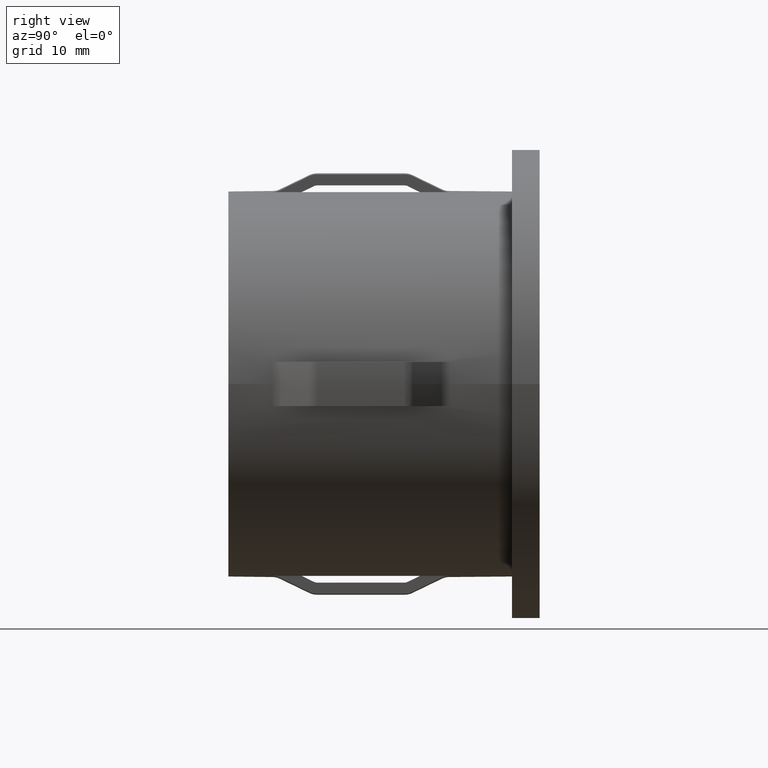
[diagram: clean part render]
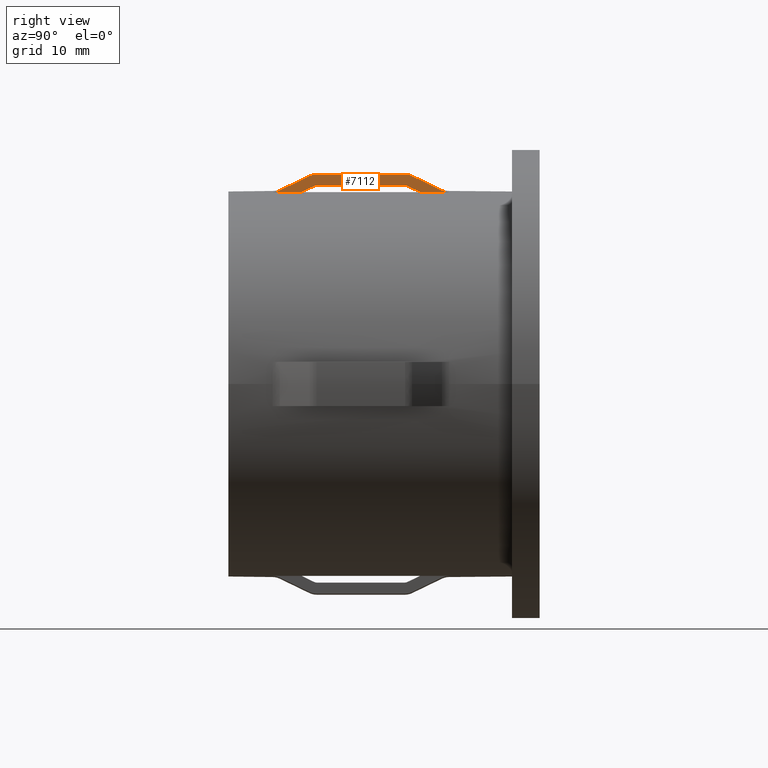
[diagram: same view with one face highlighted and labeled with its STEP entity id]
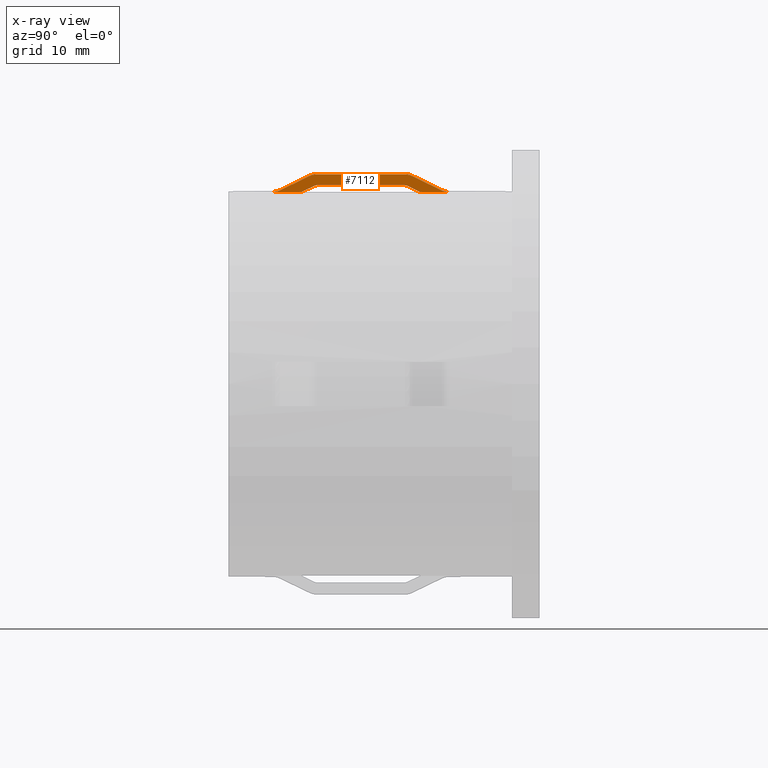
[diagram: x-ray of the same camera — body ghosted, the highlighted face saturated]
A machine part, right view. The second image highlights one B-rep face of the part: STEP entity #7112.
The next image is the same camera in x-ray: the body ghosted, the highlighted face saturated — about 0% of this face is hidden behind the body in this view.
In plain terms, the highlighted planar face has unit normal (-1, 0, 0).
Its self-contained STEP definition (entity closure, byte-faithful):
#287 = CARTESIAN_POINT ( 'NONE',  ( 2.000000000000004900, 7.556843958016167500, 18.93205106061641300 ) ) ;
#360 = VECTOR ( 'NONE', #13158, 1000.000000000000000 ) ;
#429 = CARTESIAN_POINT ( 'NONE',  ( 2.000000000000004400, 7.887045341509246300, 18.99499934193207900 ) ) ;
#511 = EDGE_CURVE ( 'NONE', #11537, #10698, #2198, .T. ) ;
#565 = CARTESIAN_POINT ( 'NONE',  ( 2.000000000000004000, 16.44480835107591300, 18.93155557880799100 ) ) ;
#716 = CARTESIAN_POINT ( 'NONE',  ( 2.000000000000004400, 16.21740934651483800, 17.93911509318548200 ) ) ;
#747 = ORIENTED_EDGE ( 'NONE', *, *, #10527, .F. ) ;
#803 = EDGE_CURVE ( 'NONE', #2848, #7339, #9553, .T. ) ;
#882 = B_SPLINE_CURVE_WITH_KNOTS ( 'NONE', 3,
 ( #8774, #6189, #7414, #5426, #4214, #1578 ),
 .UNSPECIFIED., .F., .F.,
 ( 4, 2, 4 ),
 ( 0.002984204066117889700, 0.003095767650386097100, 0.003207331234654304600 ),
 .UNSPECIFIED. ) ;
#1090 = CARTESIAN_POINT ( 'NONE',  ( 2.000000000000004400, 6.721277200092722600, 17.42338755500208000 ) ) ;
#1342 = PLANE ( 'NONE',  #9984 ) ;
#1360 = CARTESIAN_POINT ( 'NONE',  ( 2.000000000000004400, 16.78051298766993300, 18.78265418352582500 ) ) ;
#1435 = DIRECTION ( 'NONE',  ( -0.0000000000000000000, -1.000000000000000000, -0.0000000000000000000 ) ) ;
#1472 = CARTESIAN_POINT ( 'NONE',  ( 2.000000000000004400, 15.99999999999999300, 18.99499934193207600 ) ) ;
#1523 = ORIENTED_EDGE ( 'NONE', *, *, #14702, .F. ) ;
#1578 = CARTESIAN_POINT ( 'NONE',  ( 2.000000000000004400, 7.782590653485146800, 17.93911509318548500 ) ) ;
#1938 = CARTESIAN_POINT ( 'NONE',  ( 2.000000000000004400, 5.795604330137454200, 18.09114028407286800 ) ) ;
#1992 = CARTESIAN_POINT ( 'NONE',  ( 2.000000000000004400, 7.347771960455461700, 18.84494494648242100 ) ) ;
#2079 = CARTESIAN_POINT ( 'NONE',  ( 2.000000000000004400, 7.999999999999992900, 18.99499934193207600 ) ) ;
#2128 = EDGE_CURVE ( 'NONE', #3793, #4877, #4494, .T. ) ;
#2175 = CARTESIAN_POINT ( 'NONE',  ( 2.000000000000004400, 7.481000406290842600, 17.79258881661633400 ) ) ;
#2195 = EDGE_CURVE ( 'NONE', #6413, #4347, #11757, .T. ) ;
#2198 = B_SPLINE_CURVE_WITH_KNOTS ( 'NONE', 3,
 ( #15150, #10441, #11667, #4396, #7993, #12903, #4226 ),
 .UNSPECIFIED., .F., .F.,
 ( 4, 3, 4 ),
 ( 0.004378804806375631200, 0.005246043296429203800, 0.005645828840888095600 ),
 .UNSPECIFIED. ) ;
#2277 = CARTESIAN_POINT ( 'NONE',  ( 2.000000000000004400, 4.652228039544536600, 17.53553738695413600 ) ) ;
#2367 = CARTESIAN_POINT ( 'NONE',  ( 2.000000000000004400, 7.782590653485146800, 17.93911509318548500 ) ) ;
#2383 = CARTESIAN_POINT ( 'NONE',  ( 2.000000000000004400, 7.179418816228737100, 17.64604471980359800 ) ) ;
#2435 = CARTESIAN_POINT ( 'NONE',  ( 2.000000000000004400, 16.65222803954452500, 18.84494494648242100 ) ) ;
#2507 = DIRECTION ( 'NONE',  ( -0.0000000000000000000, -1.000000000000000000, -0.0000000000000000000 ) ) ;
#2606 = CARTESIAN_POINT ( 'NONE',  ( 2.000000000000004400, 19.88732577106016900, 17.38533865071370600 ) ) ;
#2680 = DIRECTION ( 'NONE',  ( -1.000000000000000000, 0.0000000000000000000, 7.655443703210501100E-017 ) ) ;
#2848 = VERTEX_POINT ( 'NONE', #2277 ) ;
#2967 = CARTESIAN_POINT ( 'NONE',  ( 2.000000000000004000, 16.11283338446143200, 18.99499934193207600 ) ) ;
#2999 = CARTESIAN_POINT ( 'NONE',  ( 2.000000000000004400, 7.347771960455461700, 18.84494494648242100 ) ) ;
#3027 = CARTESIAN_POINT ( 'NONE',  ( 2.000000000000004400, 16.65222803954452500, 18.84494494648242100 ) ) ;
#3142 = CARTESIAN_POINT ( 'NONE',  ( 2.000000000000004400, 15.99999999999999600, 17.98916340467226900 ) ) ;
#3247 = VERTEX_POINT ( 'NONE', #14817 ) ;
#3300 = CARTESIAN_POINT ( 'NONE',  ( 2.000000000000004000, 16.07469982276522600, 17.98493879873474900 ) ) ;
#3599 = CARTESIAN_POINT ( 'NONE',  ( 2.000000000000004400, 6.799561562819159900, 17.46143513964978300 ) ) ;
#3770 = CARTESIAN_POINT ( 'NONE',  ( 2.000000000000004400, 20.00000000000000000, 18.99499934193207600 ) ) ;
#3793 = VERTEX_POINT ( 'NONE', #6317 ) ;
#4214 = CARTESIAN_POINT ( 'NONE',  ( 2.000000000000004400, 7.816050847013419100, 17.95537157898566600 ) ) ;
#4226 = CARTESIAN_POINT ( 'NONE',  ( 2.000000000000004400, 16.21740934651483800, 17.93911509318548200 ) ) ;
#4296 = ORIENTED_EDGE ( 'NONE', *, *, #511, .F. ) ;
#4344 = CARTESIAN_POINT ( 'NONE',  ( 2.000000000000004400, 16.21740934651483800, 17.93911509318548200 ) ) ;
#4347 = VERTEX_POINT ( 'NONE', #9483 ) ;
#4396 = CARTESIAN_POINT ( 'NONE',  ( 2.000000000000004400, 16.57699703055094500, 17.76440047383717100 ) ) ;
#4494 = LINE ( 'NONE', #3770, #5414 ) ;
#4707 = EDGE_CURVE ( 'NONE', #3793, #6046, #15064, .T. ) ;
#4831 = VERTEX_POINT ( 'NONE', #11783 ) ;
#4871 = CARTESIAN_POINT ( 'NONE',  ( 2.000000000000004900, 4.225774783590137100, 17.39830699950380600 ) ) ;
#4877 = VERTEX_POINT ( 'NONE', #2079 ) ;
#4949 = EDGE_CURVE ( 'NONE', #6046, #6413, #14592, .T. ) ;
#4985 = CARTESIAN_POINT ( 'NONE',  ( 2.000000000000004400, 17.35700652122430700, 17.38533865071371300 ) ) ;
#5022 = CARTESIAN_POINT ( 'NONE',  ( 2.000000000000004400, 16.65222803954452500, 18.84494494648242100 ) ) ;
#5103 = LINE ( 'NONE', #8257, #360 ) ;
#5218 = CARTESIAN_POINT ( 'NONE',  ( 2.000000000000004000, 4.443661456242358200, 17.44851260753535600 ) ) ;
#5414 = VECTOR ( 'NONE', #2507, 1000.000000000000000 ) ;
#5426 = CARTESIAN_POINT ( 'NONE',  ( 2.000000000000004000, 7.851799492820431300, 17.96803738279951500 ) ) ;
#5557 = CARTESIAN_POINT ( 'NONE',  ( 2.000000000000004000, 16.18356693006009200, 17.95555728028983800 ) ) ;
#5667 = B_SPLINE_CURVE_WITH_KNOTS ( 'NONE', 3,
 ( #7183, #2175, #2383, #5961, #3599, #1090, #7073 ),
 .UNSPECIFIED., .F., .F.,
 ( 4, 3, 4 ),
 ( 0.004240140799312595200, 0.005246043174334997500, 0.005507164862887313800 ),
 .UNSPECIFIED. ) ;
#5723 = CARTESIAN_POINT ( 'NONE',  ( 2.000000000000004900, 16.14763232243178200, 17.96820467444555200 ) ) ;
#5961 = CARTESIAN_POINT ( 'NONE',  ( 2.000000000000004400, 6.877846554451107200, 17.49948143021761400 ) ) ;
#6020 = ORIENTED_EDGE ( 'NONE', *, *, #9351, .F. ) ;
#6046 = VERTEX_POINT ( 'NONE', #5022 ) ;
#6112 = CARTESIAN_POINT ( 'NONE',  ( 2.000000000000004400, 17.80736327394554100, 18.28399861176512100 ) ) ;
#6189 = CARTESIAN_POINT ( 'NONE',  ( 2.000000000000004000, 7.962724894536494300, 17.98916340467229000 ) ) ;
#6317 = CARTESIAN_POINT ( 'NONE',  ( 2.000000000000004400, 15.99999999999999300, 18.99499934193207600 ) ) ;
#6413 = VERTEX_POINT ( 'NONE', #11397 ) ;
#6504 = EDGE_CURVE ( 'NONE', #11353, #13440, #5667, .T. ) ;
#6534 = CARTESIAN_POINT ( 'NONE',  ( 2.000000000000004400, 7.999999999999992900, 18.99499934193207600 ) ) ;
#6777 = ORIENTED_EDGE ( 'NONE', *, *, #2195, .F. ) ;
#6842 = ORIENTED_EDGE ( 'NONE', *, *, #803, .F. ) ;
#7021 = CARTESIAN_POINT ( 'NONE',  ( 2.000000000000004000, 7.774852703081117000, 18.98214469182601900 ) ) ;
#7073 = CARTESIAN_POINT ( 'NONE',  ( 2.000000000000004400, 6.642993478775706800, 17.38533865071371300 ) ) ;
#7083 = EDGE_CURVE ( 'NONE', #13440, #4831, #10489, .T. ) ;
#7112 = ADVANCED_FACE ( 'NONE', ( #7453 ), #1342, .F. ) ;
#7183 = CARTESIAN_POINT ( 'NONE',  ( 2.000000000000004400, 7.782590653485146800, 17.93911509318548500 ) ) ;
#7281 = CARTESIAN_POINT ( 'NONE',  ( 2.000000000000004400, 18.57759776057489300, 17.90983001612616500 ) ) ;
#7303 = CARTESIAN_POINT ( 'NONE',  ( 2.000000000000004400, 4.652228039544536600, 17.53553738695413600 ) ) ;
#7339 = VERTEX_POINT ( 'NONE', #11460 ) ;
#7414 = CARTESIAN_POINT ( 'NONE',  ( 2.000000000000004900, 7.924944579288864900, 17.98489366810551700 ) ) ;
#7453 = FACE_OUTER_BOUND ( 'NONE', #9390, .T. ) ;
#7846 = VERTEX_POINT ( 'NONE', #13354 ) ;
#7993 = CARTESIAN_POINT ( 'NONE',  ( 2.000000000000004400, 16.45713586471631400, 17.82264155235982600 ) ) ;
#8008 = CARTESIAN_POINT ( 'NONE',  ( 2.000000000000004400, 5.019604511852441500, 17.71406505931646100 ) ) ;
#8257 = CARTESIAN_POINT ( 'NONE',  ( 2.000000000000004400, 28.19999999999999900, 17.98916340467226900 ) ) ;
#8322 = CARTESIAN_POINT ( 'NONE',  ( 2.000000000000004000, 7.449211422726425400, 18.89420046391528600 ) ) ;
#8774 = CARTESIAN_POINT ( 'NONE',  ( 2.000000000000008000, 7.999999999999996400, 17.98916340467226900 ) ) ;
#9089 = LINE ( 'NONE', #14800, #14774 ) ;
#9108 = CARTESIAN_POINT ( 'NONE',  ( 2.000000000000004400, 16.55038329150406500, 18.89439725675939000 ) ) ;
#9148 = ORIENTED_EDGE ( 'NONE', *, *, #4949, .F. ) ;
#9233 = CARTESIAN_POINT ( 'NONE',  ( 2.000000000000004400, 6.571663515002760500, 18.46809335234959100 ) ) ;
#9283 = CARTESIAN_POINT ( 'NONE',  ( 2.000000000000004400, 16.03764833388963100, 17.98916340467227200 ) ) ;
#9351 = EDGE_CURVE ( 'NONE', #4831, #2848, #12183, .T. ) ;
#9390 = EDGE_LOOP ( 'NONE', ( #9148, #15339, #11988, #1523, #6842, #6020, #13184, #13451, #11575, #747, #14922, #4296, #13057, #6777 ) ) ;
#9483 = CARTESIAN_POINT ( 'NONE',  ( 2.000000000000004400, 20.00000000000000000, 17.38533865071371300 ) ) ;
#9553 = B_SPLINE_CURVE_WITH_KNOTS ( 'NONE', 3,
 ( #12749, #13999, #15262, #8008, #1938, #9233, #1992 ),
 .UNSPECIFIED., .F., .F.,
 ( 4, 3, 4 ),
 ( 0.005706637982245322900, 0.006115095536436072700, 0.008703386901833828600 ),
 .UNSPECIFIED. ) ;
#9812 = B_SPLINE_CURVE_WITH_KNOTS ( 'NONE', 3,
 ( #4344, #5557, #5723, #3300, #9283, #3142 ),
 .UNSPECIFIED., .F., .F.,
 ( 4, 2, 4 ),
 ( 0.003065884309001231800, 0.003177718742457485600, 0.003289553175913739900 ),
 .UNSPECIFIED. ) ;
#9828 = CARTESIAN_POINT ( 'NONE',  ( 2.000000000000004400, 19.34777196045545700, 17.53553738695415400 ) ) ;
#9984 = AXIS2_PLACEMENT_3D ( 'NONE', #14734, #2680, #13377 ) ;
#10441 = CARTESIAN_POINT ( 'NONE',  ( 2.000000000000004400, 17.09701028184609600, 17.51170683890154600 ) ) ;
#10489 = LINE ( 'NONE', #14361, #13536 ) ;
#10527 = EDGE_CURVE ( 'NONE', #3247, #7846, #5103, .T. ) ;
#10698 = VERTEX_POINT ( 'NONE', #716 ) ;
#10712 = CARTESIAN_POINT ( 'NONE',  ( 2.000000000000004400, 3.999999999999993300, 17.38533865071371300 ) ) ;
#10872 = CARTESIAN_POINT ( 'NONE',  ( 2.000000000000004000, 19.77455165937909200, 17.39825671330776300 ) ) ;
#10887 = EDGE_CURVE ( 'NONE', #4347, #11537, #9089, .T. ) ;
#11252 = DIRECTION ( 'NONE',  ( -0.0000000000000000000, -1.000000000000000000, -0.0000000000000000000 ) ) ;
#11353 = VERTEX_POINT ( 'NONE', #2367 ) ;
#11397 = CARTESIAN_POINT ( 'NONE',  ( 2.000000000000004400, 19.34777196045545700, 17.53553738695415400 ) ) ;
#11447 = CARTESIAN_POINT ( 'NONE',  ( 2.000000000000004900, 16.22640607406992400, 18.98196973648488500 ) ) ;
#11460 = CARTESIAN_POINT ( 'NONE',  ( 2.000000000000004400, 7.347771960455461700, 18.84494494648242100 ) ) ;
#11537 = VERTEX_POINT ( 'NONE', #4985 ) ;
#11575 = ORIENTED_EDGE ( 'NONE', *, *, #12007, .F. ) ;
#11667 = CARTESIAN_POINT ( 'NONE',  ( 2.000000000000004400, 16.83700697013931700, 17.63806047703512500 ) ) ;
#11757 = B_SPLINE_CURVE_WITH_KNOTS ( 'NONE', 3,
 ( #14622, #13468, #14666, #10872, #2606, #15735 ),
 .UNSPECIFIED., .F., .F.,
 ( 4, 2, 4 ),
 ( 0.009299494365746617200, 0.009634872503463561700, 0.009970250641180506200 ),
 .UNSPECIFIED. ) ;
#11783 = CARTESIAN_POINT ( 'NONE',  ( 2.000000000000004400, 3.999999999999993300, 17.38533865071371300 ) ) ;
#11988 = ORIENTED_EDGE ( 'NONE', *, *, #2128, .T. ) ;
#12007 = EDGE_CURVE ( 'NONE', #7846, #11353, #882, .T. ) ;
#12183 = B_SPLINE_CURVE_WITH_KNOTS ( 'NONE', 3,
 ( #10712, #13124, #4871, #5218, #12573, #7303 ),
 .UNSPECIFIED., .F., .F.,
 ( 4, 2, 4 ),
 ( 0.009320848041468168800, 0.009656242138709903600, 0.009991636235951638400 ),
 .UNSPECIFIED. ) ;
#12242 = CARTESIAN_POINT ( 'NONE',  ( 2.000000000000004400, 17.03707878840584300, 18.65806422332412900 ) ) ;
#12573 = CARTESIAN_POINT ( 'NONE',  ( 2.000000000000004400, 4.551045182907357900, 17.48636409934759700 ) ) ;
#12749 = CARTESIAN_POINT ( 'NONE',  ( 2.000000000000004400, 4.652228039544536600, 17.53553738695413600 ) ) ;
#12903 = CARTESIAN_POINT ( 'NONE',  ( 2.000000000000004400, 16.33727328974383400, 17.88087973093610100 ) ) ;
#12904 = EDGE_CURVE ( 'NONE', #10698, #3247, #9812, .T. ) ;
#13057 = ORIENTED_EDGE ( 'NONE', *, *, #10887, .F. ) ;
#13124 = CARTESIAN_POINT ( 'NONE',  ( 2.000000000000004000, 4.112917798960595800, 17.38533865071370600 ) ) ;
#13158 = DIRECTION ( 'NONE',  ( 1.714505518806297100E-016, -1.000000000000000000, 0.0000000000000000000 ) ) ;
#13184 = ORIENTED_EDGE ( 'NONE', *, *, #7083, .F. ) ;
#13354 = CARTESIAN_POINT ( 'NONE',  ( 2.000000000000008000, 7.999999999999996400, 17.98916340467226900 ) ) ;
#13377 = DIRECTION ( 'NONE',  ( 7.655443703210501100E-017, 0.0000000000000000000, 1.000000000000000000 ) ) ;
#13397 = CARTESIAN_POINT ( 'NONE',  ( 2.000000000000004400, 16.90879658433042800, 18.72036063720813100 ) ) ;
#13440 = VERTEX_POINT ( 'NONE', #14128 ) ;
#13451 = ORIENTED_EDGE ( 'NONE', *, *, #6504, .F. ) ;
#13468 = CARTESIAN_POINT ( 'NONE',  ( 2.000000000000004000, 19.44924407278866600, 17.48622352559820900 ) ) ;
#13536 = VECTOR ( 'NONE', #1435, 1000.000000000000000 ) ;
#13999 = CARTESIAN_POINT ( 'NONE',  ( 2.000000000000004400, 4.774685349613882600, 17.59504972657069600 ) ) ;
#14128 = CARTESIAN_POINT ( 'NONE',  ( 2.000000000000004400, 6.642993478775706800, 17.38533865071371300 ) ) ;
#14361 = CARTESIAN_POINT ( 'NONE',  ( 2.000000000000004400, 20.00000000000000000, 17.38533865071371300 ) ) ;
#14389 = B_SPLINE_CURVE_WITH_KNOTS ( 'NONE', 3,
 ( #2999, #8322, #287, #7021, #429, #6534 ),
 .UNSPECIFIED., .F., .F.,
 ( 4, 2, 4 ),
 ( 0.009276642110532671400, 0.009612000719007356100, 0.009947359327482042600 ),
 .UNSPECIFIED. ) ;
#14592 = B_SPLINE_CURVE_WITH_KNOTS ( 'NONE', 3,
 ( #2435, #1360, #13397, #12242, #6112, #7281, #9828 ),
 .UNSPECIFIED., .F., .F.,
 ( 4, 3, 4 ),
 ( 0.005687269880236263200, 0.006115095185067106700, 0.008684018984234653800 ),
 .UNSPECIFIED. ) ;
#14622 = CARTESIAN_POINT ( 'NONE',  ( 2.000000000000004400, 19.34777196045545700, 17.53553738695415400 ) ) ;
#14666 = CARTESIAN_POINT ( 'NONE',  ( 2.000000000000004900, 19.55664300547160300, 17.44841759229366200 ) ) ;
#14702 = EDGE_CURVE ( 'NONE', #7339, #4877, #14389, .T. ) ;
#14734 = CARTESIAN_POINT ( 'NONE',  ( 2.000000000000003100, 20.00000000000000000, -1.531088740642102700E-016 ) ) ;
#14774 = VECTOR ( 'NONE', #11252, 1000.000000000000000 ) ;
#14800 = CARTESIAN_POINT ( 'NONE',  ( 2.000000000000004400, 20.00000000000000000, 17.38533865071371300 ) ) ;
#14817 = CARTESIAN_POINT ( 'NONE',  ( 2.000000000000004400, 15.99999999999999600, 17.98916340467226900 ) ) ;
#14922 = ORIENTED_EDGE ( 'NONE', *, *, #12904, .F. ) ;
#15064 = B_SPLINE_CURVE_WITH_KNOTS ( 'NONE', 3,
 ( #1472, #2967, #11447, #565, #9108, #3027 ),
 .UNSPECIFIED., .F., .F.,
 ( 4, 2, 4 ),
 ( 0.009223947039826485600, 0.009559394205419923000, 0.009894841371013360400 ),
 .UNSPECIFIED. ) ;
#15150 = CARTESIAN_POINT ( 'NONE',  ( 2.000000000000004400, 17.35700652122430700, 17.38533865071371300 ) ) ;
#15262 = CARTESIAN_POINT ( 'NONE',  ( 2.000000000000004400, 4.897144189016600500, 17.65455891940637700 ) ) ;
#15339 = ORIENTED_EDGE ( 'NONE', *, *, #4707, .F. ) ;
#15735 = CARTESIAN_POINT ( 'NONE',  ( 2.000000000000004400, 20.00000000000000000, 17.38533865071371300 ) ) ;